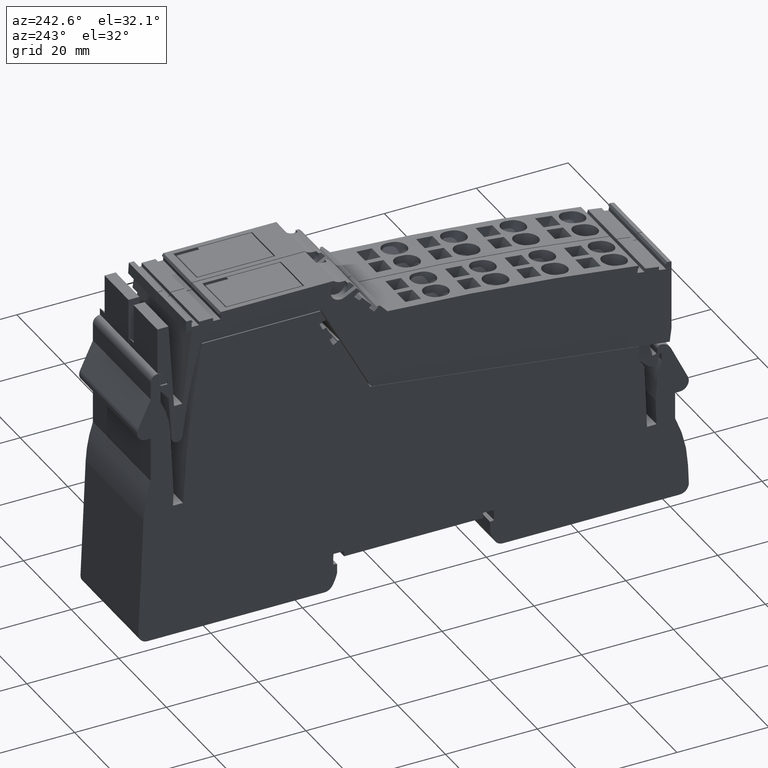
[diagram: clean part render]
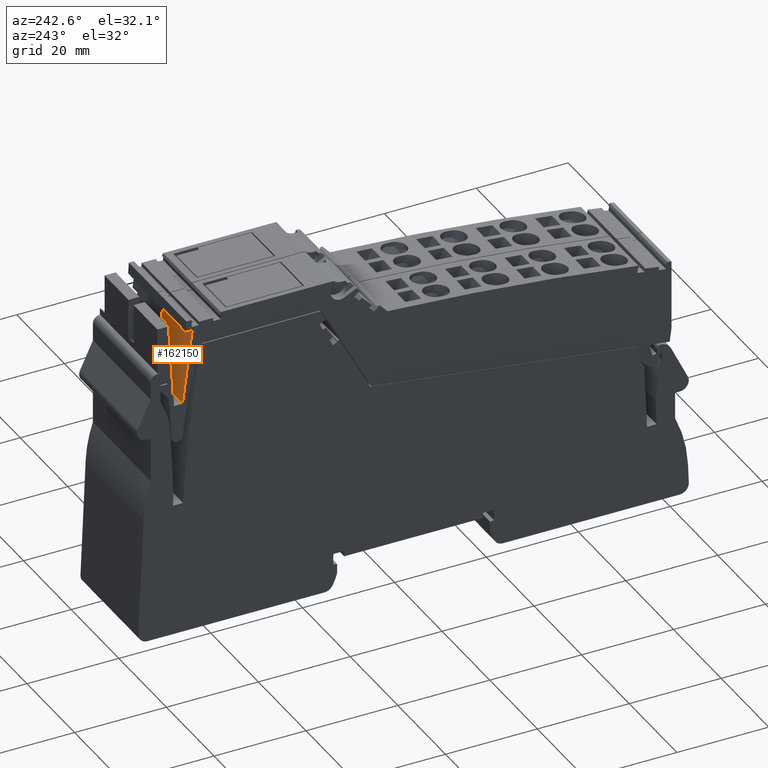
[diagram: same view with one face highlighted and labeled with its STEP entity id]
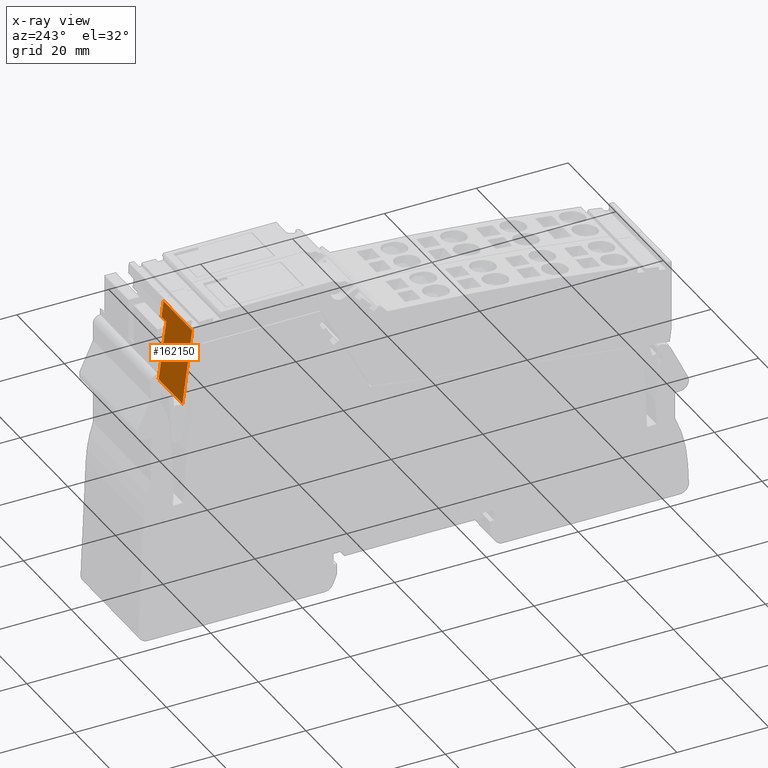
[diagram: x-ray of the same camera — body ghosted, the highlighted face saturated]
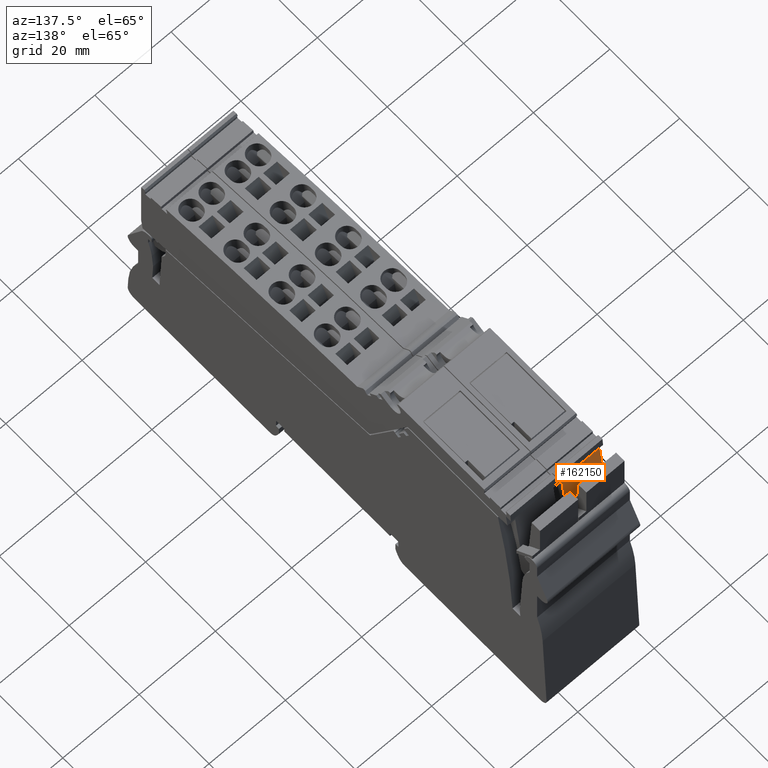
[diagram: same view with one face highlighted and labeled with its STEP entity id]
A machine part, auxiliary view. The second image highlights one B-rep face of the part: STEP entity #162150.
The next image is the same camera in x-ray: the body ghosted, the highlighted face saturated — about 0% of this face is hidden behind the body in this view.
A second angle (auxiliary view) of the same face is appended — the face is thin or edge-on in the first view.
In plain terms, the highlighted planar face has unit normal (-0, -0.9914, -0.1305).
Its self-contained STEP definition (entity closure, byte-faithful):
#1490=CARTESIAN_POINT('',(117.512908656979,82.0866197234256,-35.425));
#1500=VERTEX_POINT('',#1490);
#1530=CARTESIAN_POINT('',(128.319817162075,-2.8421709430404E-14,-35.425)
);
#1540=DIRECTION('',(0.130526192220052,-0.99144486137381,0.));
#1550=VECTOR('',#1540,1.);
#1560=LINE('',#1530,#1550);
#1570=CARTESIAN_POINT('',(117.973692398535,78.5866197234246,-35.425));
#1580=VERTEX_POINT('',#1570);
#1590=EDGE_CURVE('',#1500,#1580,#1560,.T.);
#7780=CARTESIAN_POINT('',(119.632513868136,65.9866197234248,-47.425));
#7790=VERTEX_POINT('',#7780);
#7820=CARTESIAN_POINT('',(128.319817162075,-2.8421709430404E-14,-47.425)
);
#7830=DIRECTION('',(0.130526192220052,-0.99144486137381,0.));
#7840=VECTOR('',#7830,1.);
#7850=LINE('',#7820,#7840);
#7860=CARTESIAN_POINT('',(117.512908656979,82.0866197234256,-47.425));
#7870=VERTEX_POINT('',#7860);
#7880=EDGE_CURVE('',#7870,#7790,#7850,.T.);
#13390=CARTESIAN_POINT('',(117.512908656979,82.0866197234256,0.));
#13400=DIRECTION('',(-8.85927774418128E-33,0.,1.));
#13410=VECTOR('',#13400,1.);
#13420=LINE('',#13390,#13410);
#13430=EDGE_CURVE('',#7870,#1500,#13420,.T.);
#13660=CARTESIAN_POINT('',(119.632513868136,65.9866197234249,-37.425));
#13670=VERTEX_POINT('',#13660);
#13720=CARTESIAN_POINT('',(119.632513868136,65.9866197234248,0.));
#13730=DIRECTION('',(-8.85927774418128E-33,6.90131940202395E-49,1.));
#13740=VECTOR('',#13730,1.);
#13750=LINE('',#13720,#13740);
#13760=EDGE_CURVE('',#7790,#13670,#13750,.T.);
#153900=CARTESIAN_POINT('',(117.973692398535,78.5866197234246,-37.425));
#153910=VERTEX_POINT('',#153900);
#153940=CARTESIAN_POINT('',(118.59066468609,73.900249932795,-37.425));
#153950=DIRECTION('',(-0.130526192220052,0.99144486137381,0.));
#153960=VECTOR('',#153950,1.);
#153970=LINE('',#153940,#153960);
#153980=EDGE_CURVE('',#13670,#153910,#153970,.T.);
#157510=CARTESIAN_POINT('',(117.973692398535,78.5866197234246,0.));
#157520=DIRECTION('',(8.85927774418128E-33,0.,-1.));
#157530=VECTOR('',#157520,1.);
#157540=LINE('',#157510,#157530);
#157550=EDGE_CURVE('',#1580,#153910,#157540,.T.);
#162020=CARTESIAN_POINT('',(117.512908656979,82.0866197234256,-35.425));
#162030=DIRECTION('',(-0.99144486137381,-0.130526192220052,
-8.7834853949519E-33));
#162040=DIRECTION('',(-0.130526192220052,0.99144486137381,0.));
#162050=AXIS2_PLACEMENT_3D('',#162020,#162030,#162040);
#162060=PLANE('',#162050);
#162070=ORIENTED_EDGE('',*,*,#153980,.F.);
#162080=ORIENTED_EDGE('',*,*,#157550,.T.);
#162090=ORIENTED_EDGE('',*,*,#1590,.T.);
#162100=ORIENTED_EDGE('',*,*,#13430,.T.);
#162110=ORIENTED_EDGE('',*,*,#7880,.F.);
#162120=ORIENTED_EDGE('',*,*,#13760,.F.);
#162130=EDGE_LOOP('',(#162120,#162110,#162100,#162090,#162080,#162070));
#162140=FACE_OUTER_BOUND('',#162130,.T.);
#162150=ADVANCED_FACE('',(#162140),#162060,.F.);